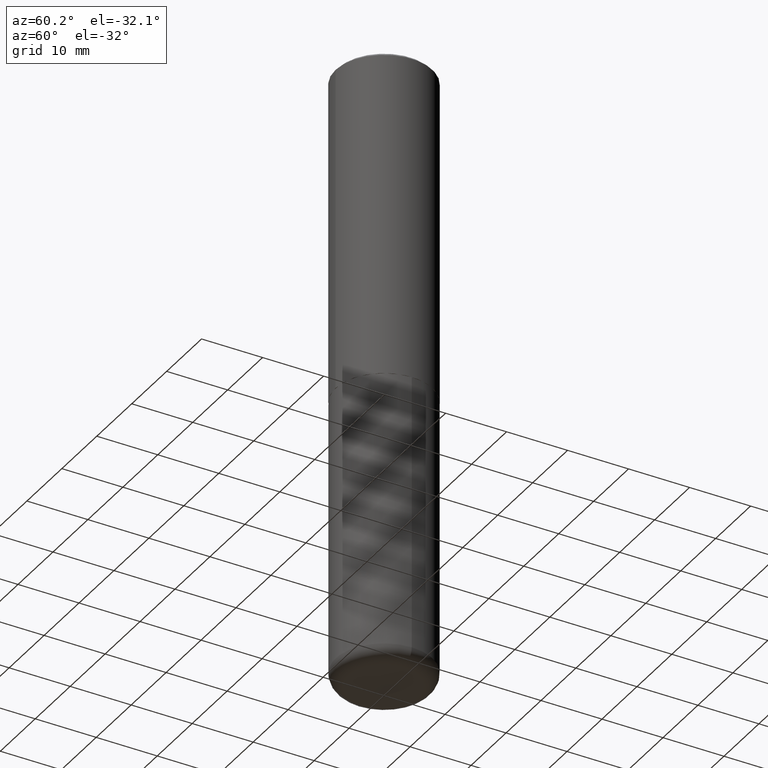
[diagram: clean part render]
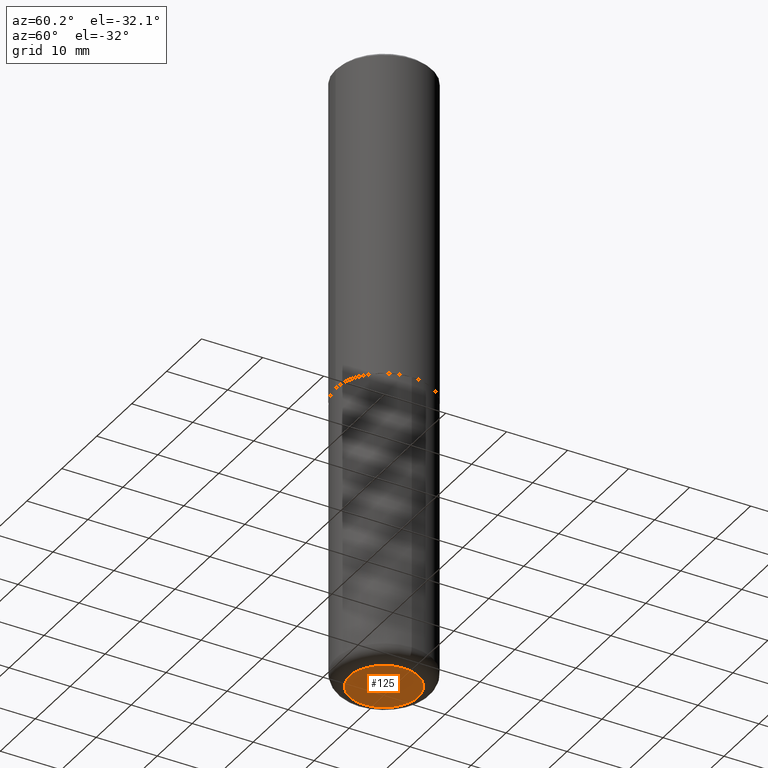
[diagram: same view with one face highlighted and labeled with its STEP entity id]
A machine part, auxiliary view. The second image highlights one B-rep face of the part: STEP entity #125.
In plain terms, the highlighted planar face has unit normal (0, -0, -1).
Its self-contained STEP definition (entity closure, byte-faithful):
#3 = EDGE_CURVE ( 'NONE', #340, #366, #215, .T. ) ;
#6 = CARTESIAN_POINT ( 'NONE',  ( -0.2225000000000000033, -1.190810687696637377E-14, -4.000000000000000000 ) ) ;
#11 = CARTESIAN_POINT ( 'NONE',  ( 0.2225000000000000033, -1.551963455115777730E-14, -4.000000000000000000 ) ) ;
#41 = CARTESIAN_POINT ( 'NONE',  ( 9.781875224740546387E-29, -1.396592535537258233E-14, -4.000000000000000000 ) ) ;
#54 = CARTESIAN_POINT ( 'NONE',  ( 9.781875224740546387E-29, -1.396592535537258233E-14, -4.000000000000000000 ) ) ;
#57 = DIRECTION ( 'NONE',  ( -2.445468806185136597E-29, 3.491481338843145583E-15, 1.000000000000000000 ) ) ;
#117 = DIRECTION ( 'NONE',  ( 1.000000000000000000, -6.982962677686269077E-15, 0.000000000000000000 ) ) ;
#125 = ADVANCED_FACE ( 'NONE', ( #300 ), #176, .T. ) ;
#156 = AXIS2_PLACEMENT_3D ( 'NONE', #54, #57, #309 ) ;
#176 = PLANE ( 'NONE',  #328 ) ;
#189 = EDGE_CURVE ( 'NONE', #366, #340, #314, .T. ) ;
#207 = ORIENTED_EDGE ( 'NONE', *, *, #189, .F. ) ;
#209 = ORIENTED_EDGE ( 'NONE', *, *, #3, .F. ) ;
#215 = CIRCLE ( 'NONE', #310, 0.2225000000000000033 ) ;
#298 = DIRECTION ( 'NONE',  ( 2.438088387897960049E-29, -3.491481338843145188E-15, -1.000000000000000000 ) ) ;
#300 = FACE_OUTER_BOUND ( 'NONE', #405, .T. ) ;
#303 = CARTESIAN_POINT ( 'NONE',  ( 9.781875224740546387E-29, -1.396592535537258233E-14, -4.000000000000000000 ) ) ;
#308 = DIRECTION ( 'NONE',  ( -2.445468806185136597E-29, 3.491481338843145583E-15, 1.000000000000000000 ) ) ;
#309 = DIRECTION ( 'NONE',  ( 1.000000000000000000, -6.982962677686269077E-15, 0.000000000000000000 ) ) ;
#310 = AXIS2_PLACEMENT_3D ( 'NONE', #41, #308, #117 ) ;
#314 = CIRCLE ( 'NONE', #156, 0.2225000000000000033 ) ;
#328 = AXIS2_PLACEMENT_3D ( 'NONE', #303, #298, #336 ) ;
#336 = DIRECTION ( 'NONE',  ( -1.000000000000000000, 6.982962677686265922E-15, -4.876176775795935793E-29 ) ) ;
#340 = VERTEX_POINT ( 'NONE', #6 ) ;
#366 = VERTEX_POINT ( 'NONE', #11 ) ;
#405 = EDGE_LOOP ( 'NONE', ( #207, #209 ) ) ;